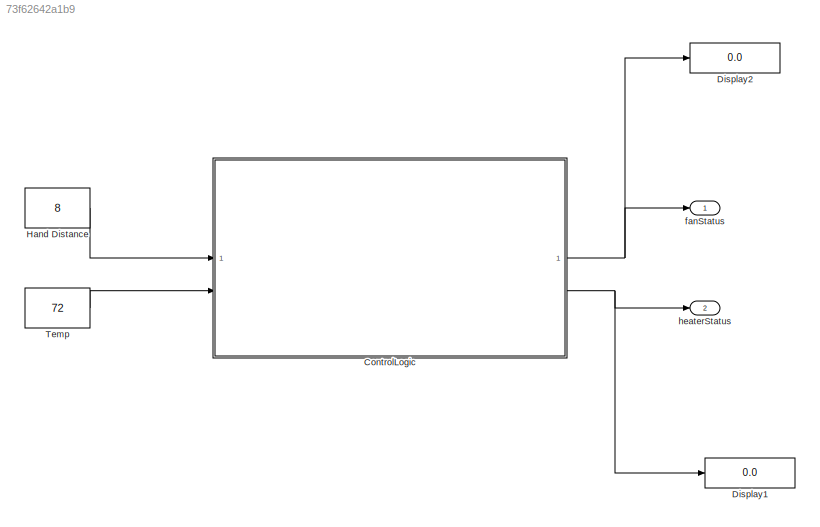
MODEL slx_73f62642a1b9
KIND model
CONFIG AbsTol = auto
CONFIG EnableMultiTasking = on
CONFIG FixedStep = 0.1
CONFIG MaxStep = auto
CONFIG MinStep = auto
CONFIG RelTol = 1e-3
CONFIG SampleTimeConstraint = Unconstrained
CONFIG SolverName = FixedStepDiscrete
CONFIG StartTime = 0.0
CONFIG StopTime = 10.0
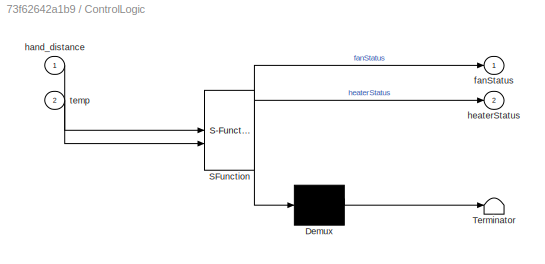
BLOCK [SubSystem] ControlLogic
  ErrorFcn = Stateflow.Translate.translate
  PermitHierarchicalResolution = ExplicitOnly
  SFBlockType = Chart
  TreatAsAtomicUnit = on
BLOCK [Demux] ControlLogic/ Demux 
  Outputs = 1
BLOCK [S-Function] ControlLogic/ SFunction 
  EnableBusSupport = on
  FunctionName = sf_sfun
  PortCounts = [2 3]
  SFcnIsStateOwnerBlock = off
  SFunctionDeploymentMode = off
  Tag = Stateflow S-Function 3
BLOCK [Terminator] ControlLogic/ Terminator 
BLOCK [Outport] ControlLogic/fanStatus
BLOCK [Inport] ControlLogic/hand_distance
BLOCK [Outport] ControlLogic/heaterStatus
  Port = 2
BLOCK [Inport] ControlLogic/temp
  Port = 2
BLOCK [Display] Display1
  Decimation = 1
BLOCK [Display] Display2
  Decimation = 1
BLOCK [Constant] Hand Distance
  Value = 8
BLOCK [Constant] Temp
  Value = 72
BLOCK [Outport] fanStatus
BLOCK [Outport] heaterStatus
  Port = 2
NET ControlLogic:1 -> Display2:1, fanStatus:1
NET ControlLogic:2 -> Display1:1, heaterStatus:1
LINE Hand Distance:1 -> ControlLogic:1
LINE Temp:1 -> ControlLogic:2
note: NET lines group one-source signal fan-out (src -> all destinations, sorted); 1:1 wires keep LINE
CHART ControlLogic states=6 transitions=13
  STATE_LABEL 'Active'
  STATE_LABEL 'lowTemp\nen:\nfanStatus=true;\nheaterStatus=true;'
  STATE_LABEL 'highTemp\nen:\nfanStatus=true;\nheaterStatus=false;'
  STATE_LABEL '[temp<65]'
  STATE_LABEL '[temp<65]'
  STATE_LABEL '[temp>070]'
  STATE_LABEL 'lowTemp\nen:\nfanStatus=true;\nheaterStatus=true;'
  STATE_LABEL 'highTemp\nen:\nfanStatus=true;\nheaterStatus=false;'
  STATE_LABEL 'Idle\nen:\nfanStatus = false ;\nheaterStatus = false ;'
  STATE_LABEL 'waiteState'
  STATE_LABEL 'waiteState2'
CHART  states=0 transitions=0
